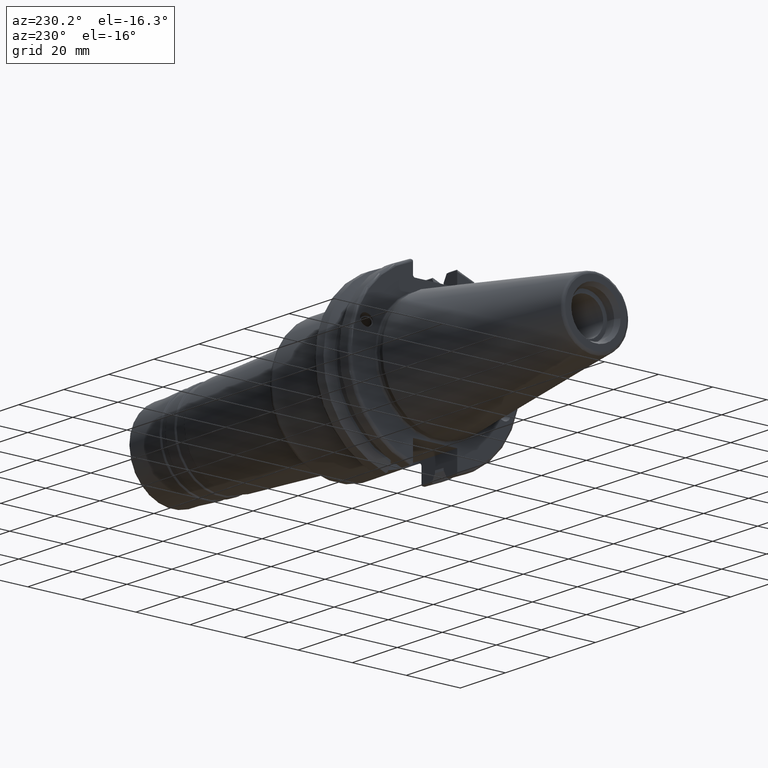
[diagram: clean part render]
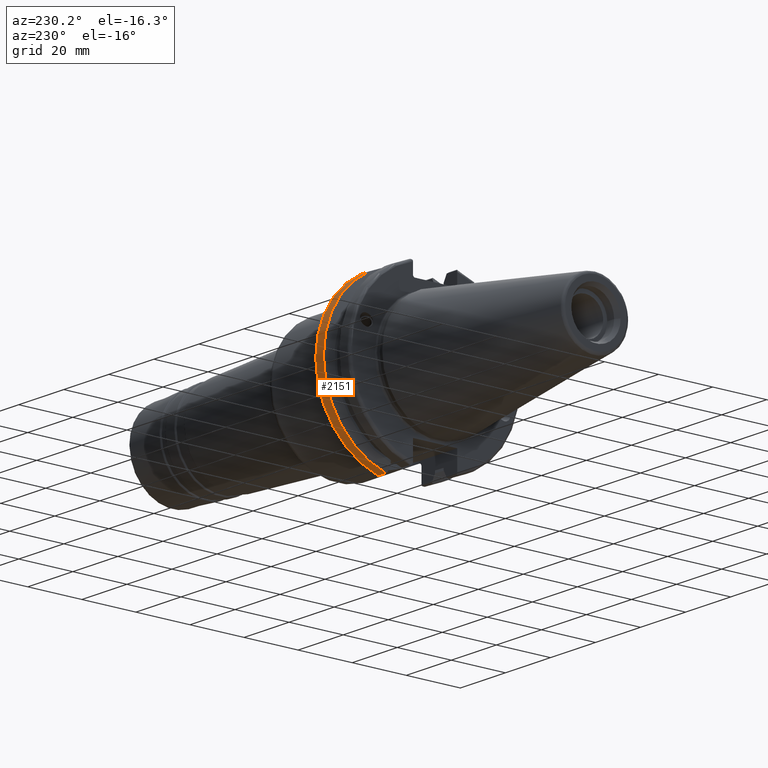
[diagram: same view with one face highlighted and labeled with its STEP entity id]
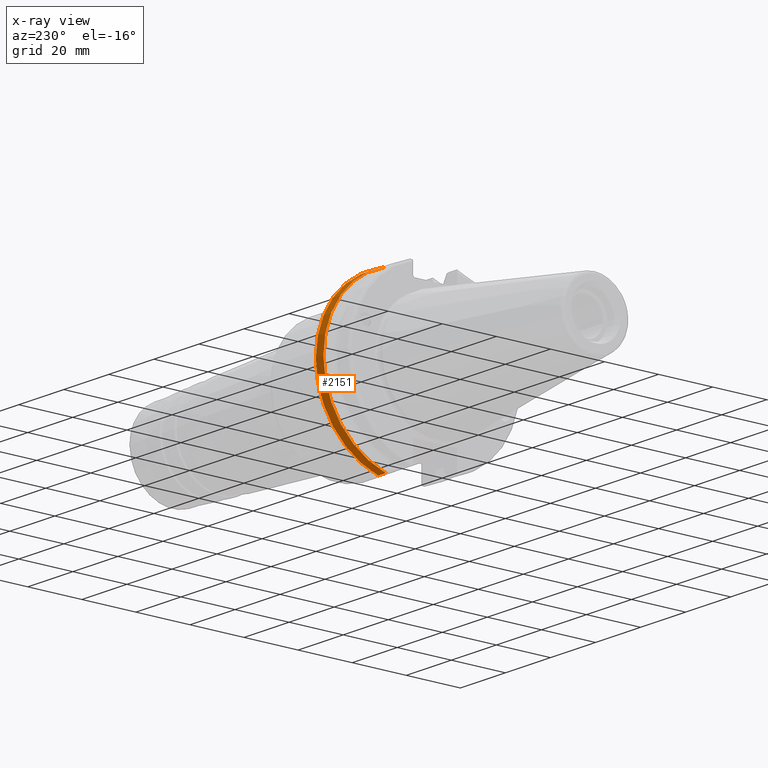
[diagram: x-ray of the same camera — body ghosted, the highlighted face saturated]
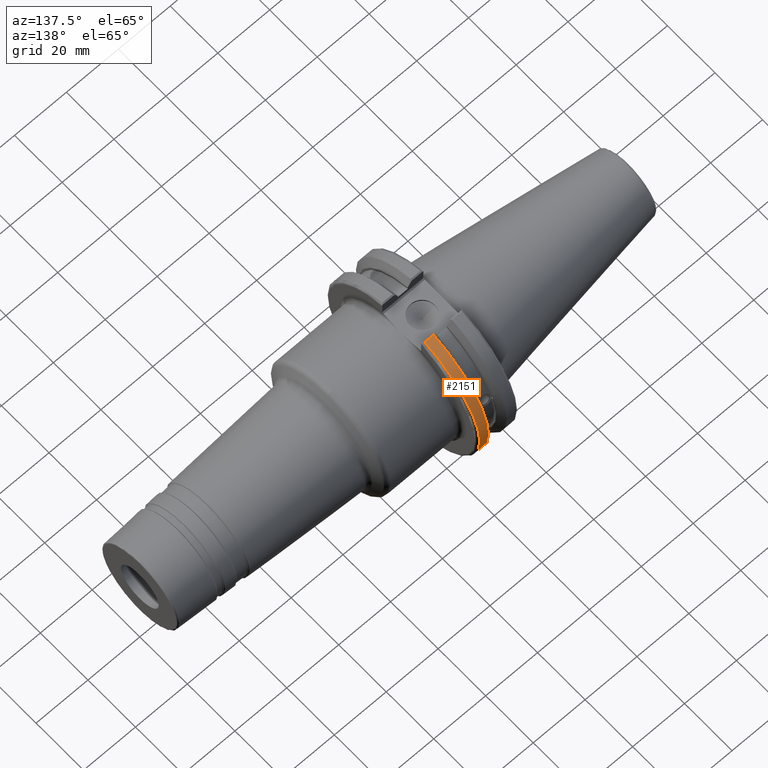
[diagram: same view with one face highlighted and labeled with its STEP entity id]
A machine part, auxiliary view. The second image highlights one B-rep face of the part: STEP entity #2151.
The next image is the same camera in x-ray: the body ghosted, the highlighted face saturated — about 0% of this face is hidden behind the body in this view.
A second angle (auxiliary view) of the same face is appended — the face is thin or edge-on in the first view.
In plain terms, the highlighted cylindrical surface (partial cylindrical patch) has radius 31.75 mm, axis along (1, 0, 0).
Its self-contained STEP definition (entity closure, byte-faithful):
#176=CYLINDRICAL_SURFACE('',#2453,31.75);
#270=FACE_OUTER_BOUND('',#389,.T.);
#389=EDGE_LOOP('',(#1949,#1950,#1951,#1952));
#475=LINE('',#3969,#574);
#501=LINE('',#4165,#600);
#574=VECTOR('',#3012,10.);
#600=VECTOR('',#3108,10.);
#750=CIRCLE('',#2416,31.75);
#765=CIRCLE('',#2454,31.75);
#975=VERTEX_POINT('',#3943);
#976=VERTEX_POINT('',#3952);
#978=VERTEX_POINT('',#3965);
#1011=VERTEX_POINT('',#4164);
#1276=EDGE_CURVE('',#975,#976,#750,.T.);
#1280=EDGE_CURVE('',#978,#975,#475,.T.);
#1338=EDGE_CURVE('',#976,#1011,#501,.T.);
#1340=EDGE_CURVE('',#978,#1011,#765,.T.);
#1949=ORIENTED_EDGE('',*,*,#1276,.F.);
#1950=ORIENTED_EDGE('',*,*,#1280,.F.);
#1951=ORIENTED_EDGE('',*,*,#1340,.T.);
#1952=ORIENTED_EDGE('',*,*,#1338,.F.);
#2151=ADVANCED_FACE('',(#270),#176,.T.);
#2416=AXIS2_PLACEMENT_3D('',#3953,#3007,#3008);
#2453=AXIS2_PLACEMENT_3D('',#4169,#3109,#3110);
#2454=AXIS2_PLACEMENT_3D('',#4170,#3111,#3112);
#3007=DIRECTION('center_axis',(1.,0.,0.));
#3008=DIRECTION('ref_axis',(0.,1.,-6.12323399573677E-17));
#3012=DIRECTION('',(1.,0.,0.));
#3108=DIRECTION('',(-1.,0.,0.));
#3109=DIRECTION('center_axis',(1.,0.,0.));
#3110=DIRECTION('ref_axis',(0.,1.,0.));
#3111=DIRECTION('center_axis',(1.,0.,0.));
#3112=DIRECTION('ref_axis',(0.,0.,-1.));
#3943=CARTESIAN_POINT('',(18.05,8.67204822802685,-30.5427254764662));
#3952=CARTESIAN_POINT('',(18.05,8.67204822802685,30.5427254764662));
#3953=CARTESIAN_POINT('Origin',(18.05,0.,0.));
#3965=CARTESIAN_POINT('',(14.6602667690756,8.67204822802685,-30.5427254764662));
#3969=CARTESIAN_POINT('',(16.8551333845378,8.67204822802685,-30.5427254764662));
#4164=CARTESIAN_POINT('',(14.6602667690756,8.67204822802685,30.5427254764662));
#4165=CARTESIAN_POINT('',(16.8551333845378,8.67204822802685,30.5427254764662));
#4169=CARTESIAN_POINT('Origin',(16.8551333845378,0.,0.));
#4170=CARTESIAN_POINT('Origin',(14.6602667690756,0.,0.));